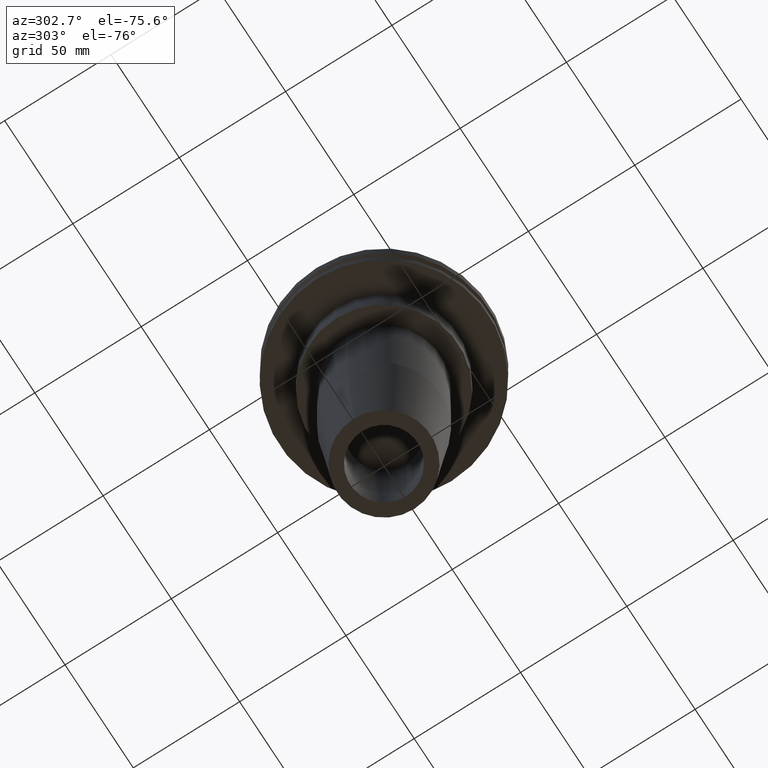
[diagram: clean part render]
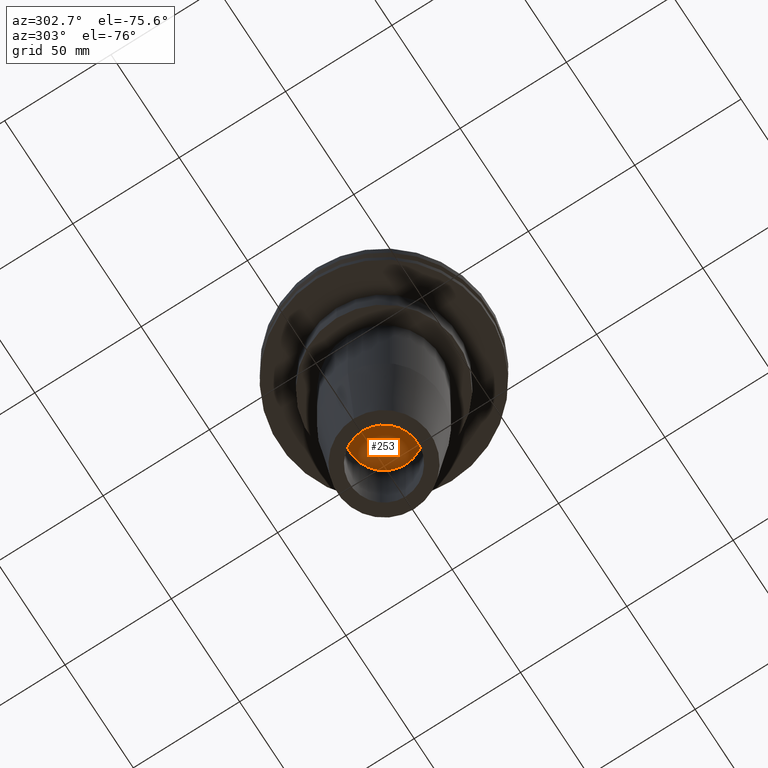
[diagram: same view with one face highlighted and labeled with its STEP entity id]
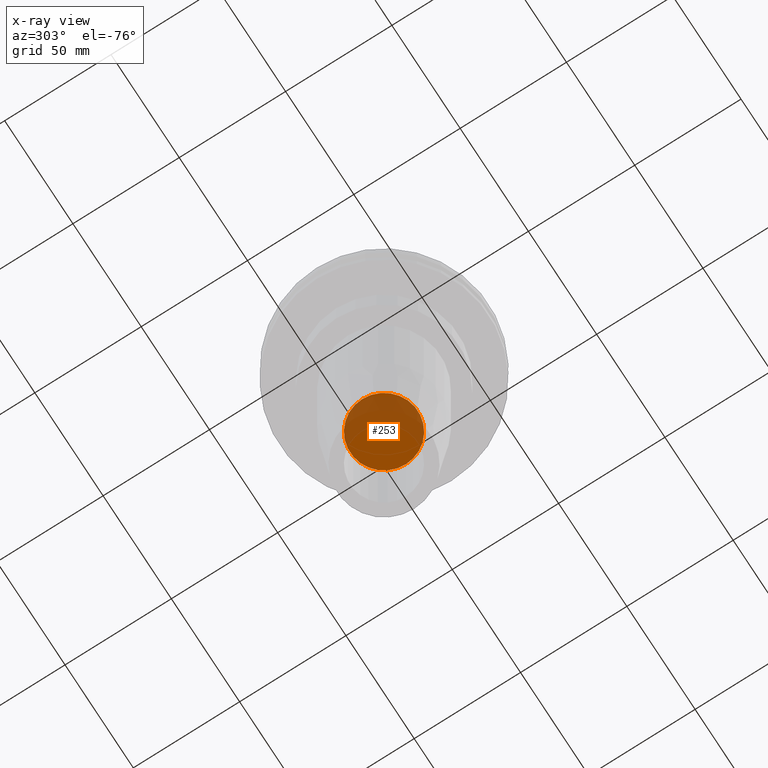
[diagram: x-ray of the same camera — body ghosted, the highlighted face saturated]
A machine part, auxiliary view. The second image highlights one B-rep face of the part: STEP entity #253.
The next image is the same camera in x-ray: the body ghosted, the highlighted face saturated — about 49% of this face is hidden behind the body in this view.
In plain terms, the highlighted planar face has unit normal (0, -0, 1).
Its self-contained STEP definition (entity closure, byte-faithful):
#4 = EDGE_LOOP ( 'NONE', ( #190, #770 ) ) ;
#15 = AXIS2_PLACEMENT_3D ( 'NONE', #203, #52, #330 ) ;
#40 = DIRECTION ( 'NONE',  ( -0.000000000000000000, -0.000000000000000000, 1.000000000000000000 ) ) ;
#52 = DIRECTION ( 'NONE',  ( 0.000000000000000000, -0.000000000000000000, 1.000000000000000000 ) ) ;
#107 = CARTESIAN_POINT ( 'NONE',  ( 0.000000000000000000, 0.000000000000000000, -101.4000000000000199 ) ) ;
#129 = CARTESIAN_POINT ( 'NONE',  ( 15.87500000000003197, 0.000000000000000000, -101.4000000000000199 ) ) ;
#190 = ORIENTED_EDGE ( 'NONE', *, *, #215, .F. ) ;
#199 = AXIS2_PLACEMENT_3D ( 'NONE', #425, #40, #690 ) ;
#203 = CARTESIAN_POINT ( 'NONE',  ( 0.000000000000000000, 15.87500000000003197, -101.4000000000000199 ) ) ;
#215 = EDGE_CURVE ( 'NONE', #326, #702, #739, .T. ) ;
#253 = ADVANCED_FACE ( 'NONE', ( #848 ), #592, .F. ) ;
#266 = CARTESIAN_POINT ( 'NONE',  ( -15.87500000000003197, 1.944126793646427182E-15, -101.4000000000000199 ) ) ;
#326 = VERTEX_POINT ( 'NONE', #129 ) ;
#330 = DIRECTION ( 'NONE',  ( 1.000000000000000000, 0.000000000000000000, 0.000000000000000000 ) ) ;
#425 = CARTESIAN_POINT ( 'NONE',  ( 0.000000000000000000, 0.000000000000000000, -101.4000000000000199 ) ) ;
#450 = EDGE_CURVE ( 'NONE', #702, #326, #787, .T. ) ;
#558 = DIRECTION ( 'NONE',  ( -0.000000000000000000, -0.000000000000000000, 1.000000000000000000 ) ) ;
#592 = PLANE ( 'NONE',  #15 ) ;
#627 = DIRECTION ( 'NONE',  ( 1.000000000000000000, 0.000000000000000000, 0.000000000000000000 ) ) ;
#690 = DIRECTION ( 'NONE',  ( 1.000000000000000000, 0.000000000000000000, 0.000000000000000000 ) ) ;
#702 = VERTEX_POINT ( 'NONE', #266 ) ;
#705 = AXIS2_PLACEMENT_3D ( 'NONE', #107, #558, #627 ) ;
#739 = CIRCLE ( 'NONE', #199, 15.87500000000003197 ) ;
#770 = ORIENTED_EDGE ( 'NONE', *, *, #450, .F. ) ;
#787 = CIRCLE ( 'NONE', #705, 15.87500000000003197 ) ;
#848 = FACE_OUTER_BOUND ( 'NONE', #4, .T. ) ;